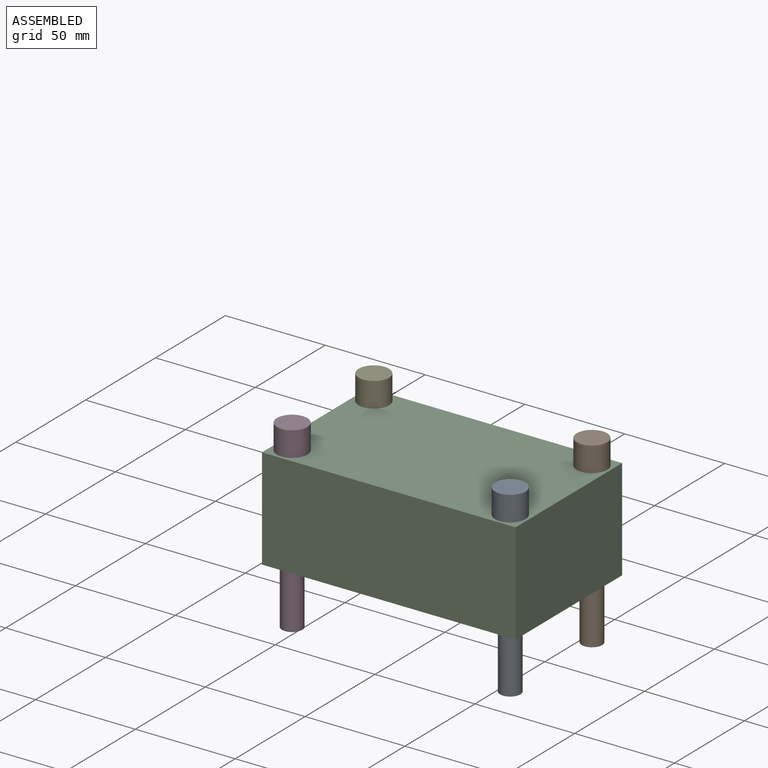
[diagram: assembled view]
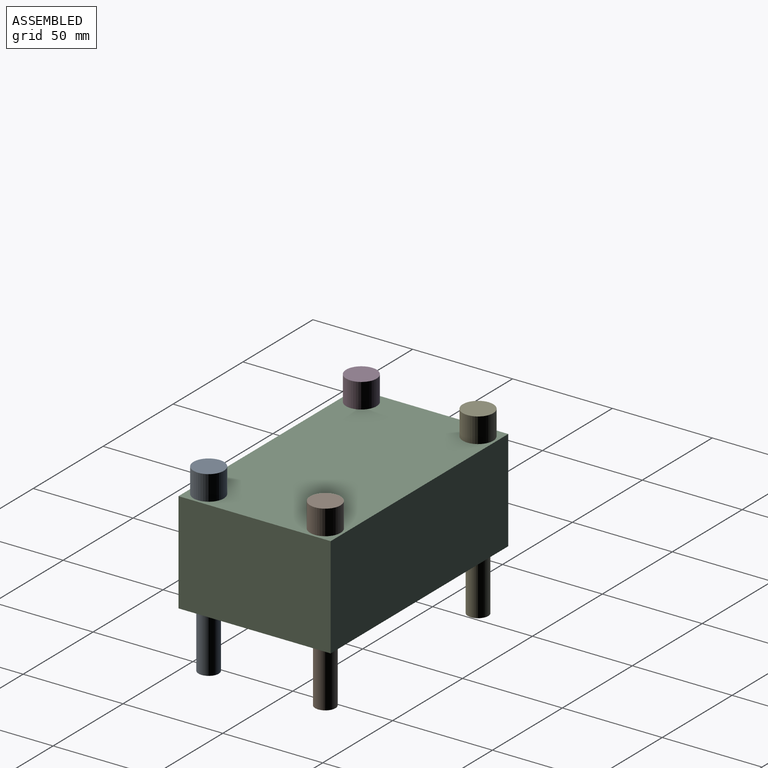
[diagram: assembled view, second angle]
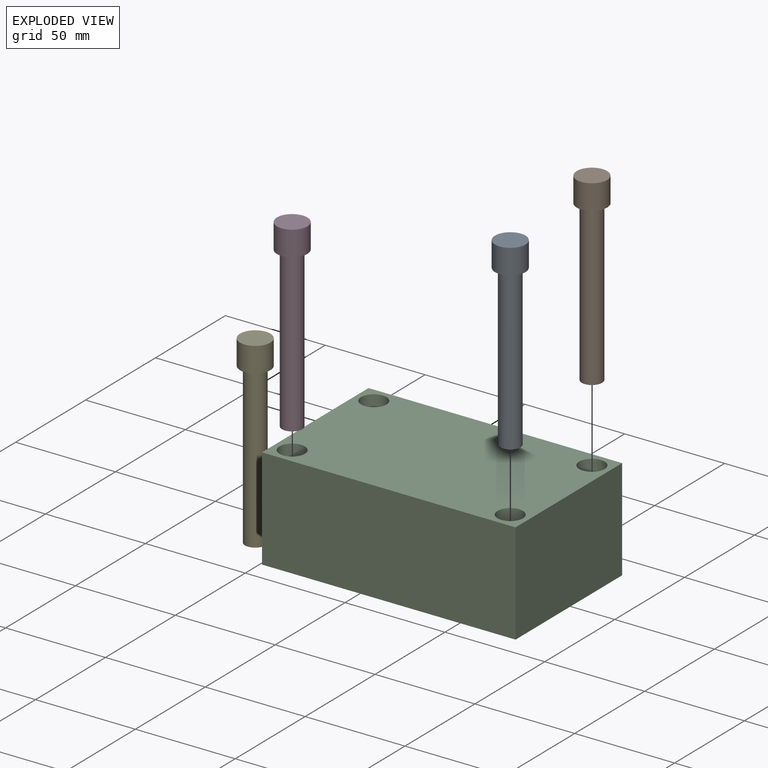
[diagram: exploded view]
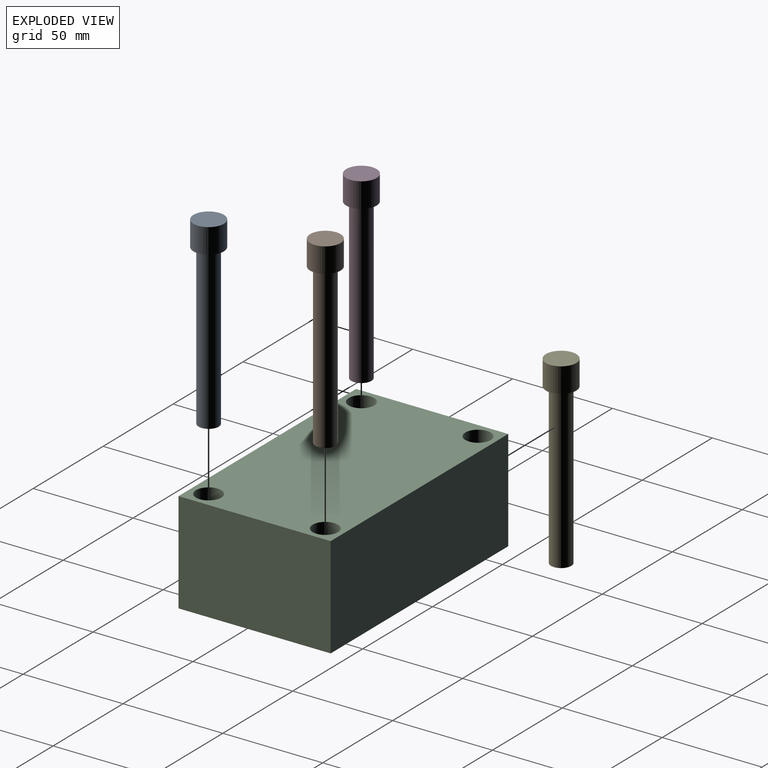
[diagram: exploded view, second angle]
ASSEMBLY  parts=5 mates=3
PART A: 5 faces, bbox 15.2x15.2x92.5 mm
  f0: plane 15.24x15.24mm, normal (0,0,1), area 182.4mm2, adj f4
  f1: plane 10.16x10.16mm, normal (0,0,-1), area 81.1mm2, adj f2
  f2: cylinder r=5.08mm len=80.01mm, axis (0,0,1), area 2553.8mm2, adj f1,f3
  f3: plane 15.24x15.24mm, normal (0,0,-1), area 101.3mm2, adj f2,f4
  f4: cylinder r=7.62mm len=15.24mm, axis (0,0,1), area 597.9mm2, adj f0,f3
PART B: same geometry as A
PART C: 10 faces, bbox 127x76.2x50.8 mm
  f0: plane 127x50.8mm, normal (0,-1,0), area 6451.6mm2, adj f1,f7,f8,f9
  f1: plane 76.2x50.8mm, normal (1,0,0), area 3871mm2, adj f0,f2,f8,f9
  f2: plane 127x50.8mm, normal (0,1,0), area 6451.6mm2, adj f1,f7,f8,f9
  f3: cylinder r=6.35mm len=50.8mm, axis (0,0,-1), area 2026.8mm2, adj f8,f9
  f4: cylinder r=6.35mm len=50.8mm, axis (0,0,-1), area 2026.8mm2, adj f8,f9
  f5: cylinder r=6.35mm len=50.8mm, axis (0,0,-1), area 2026.8mm2, adj f8,f9
  f6: cylinder r=6.35mm len=50.8mm, axis (0,0,-1), area 2026.8mm2, adj f8,f9
  f7: plane 76.2x50.8mm, normal (-1,0,0), area 3871mm2, adj f0,f2,f8,f9
  f8: plane 127x76.2mm, normal (0,0,1), area 9170.7mm2, adj f0,f1,f2,f3,f4,f5,f6,f7
  f9: plane 127x76.2mm, normal (0,0,-1), area 9170.7mm2, adj f0,f1,f2,f3,f4,f5,f6,f7
PART D: same geometry as A
PART E: same geometry as A
PLACE A t=(112.79,-65.57,2.95)mm
PLACE B t=(112.79,-7.15,2.95)mm
PLACE C t=(3.57,-7.15,2.95)mm fixed
PLACE D t=(3.57,-65.57,2.95)mm
PLACE E t=(3.57,-7.15,2.95)mm
MATE fastened B.f2 <-> C.f6  axis (0,0,1) through (58.18,22.06,53.75)mm
MATE fastened A.f2 <-> C.f5  axis (0,0,1) through (58.18,-36.36,53.75)mm
MATE cylindrical D.f2 <-> C.f4  axis (0,0,1) through (-51.04,-36.36,53.75)mm
